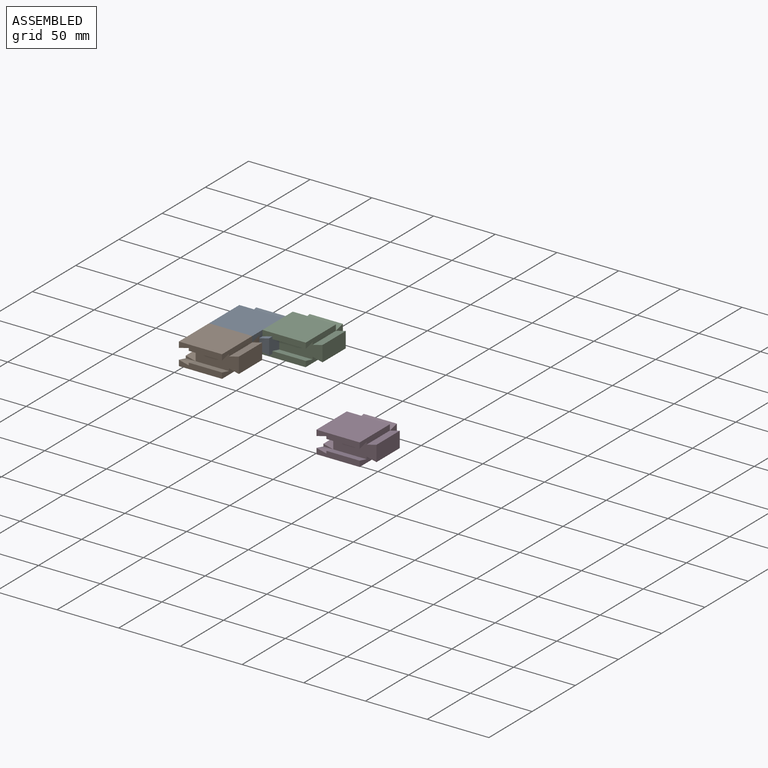
[diagram: assembled view]
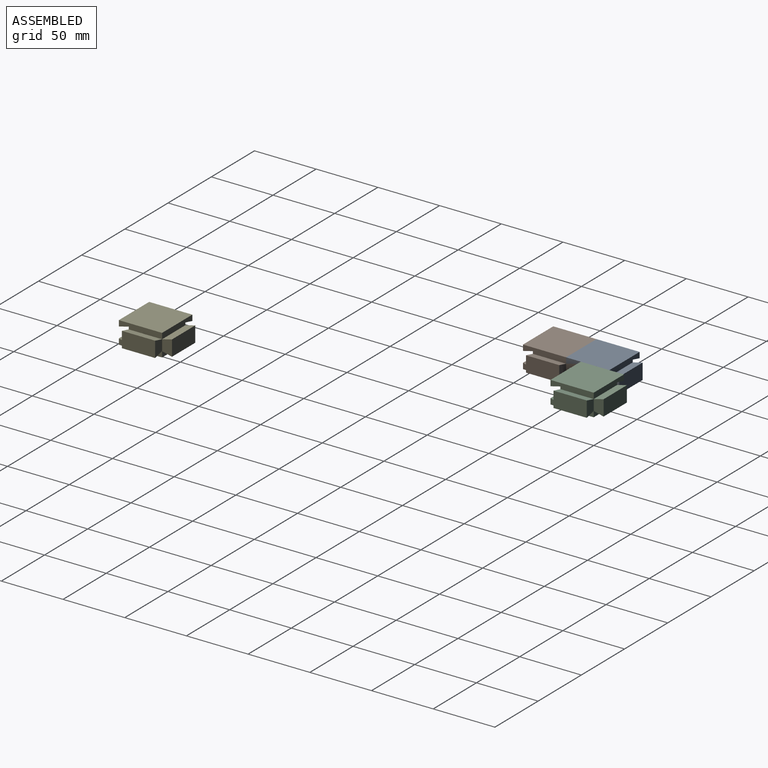
[diagram: assembled view, second angle]
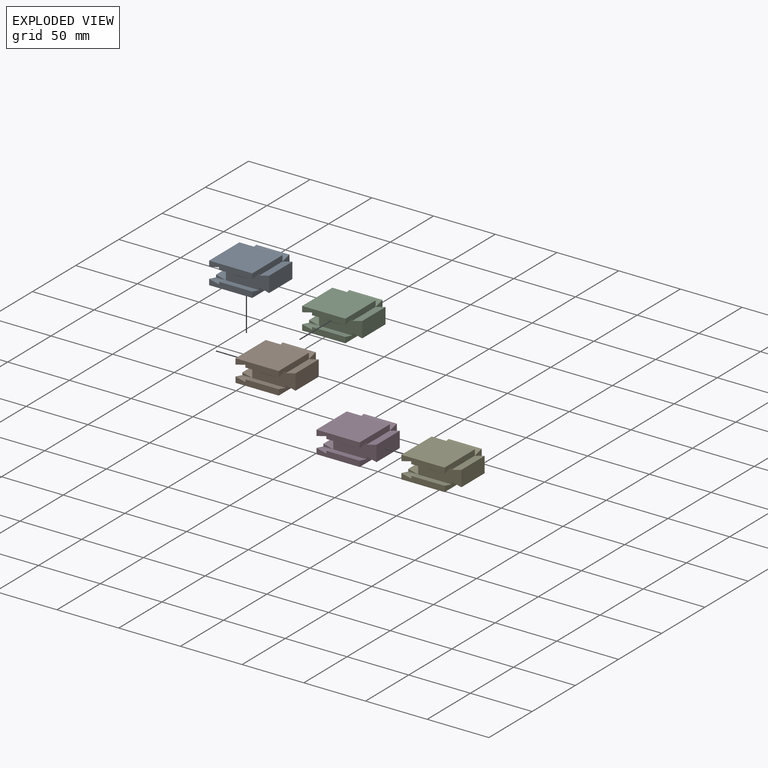
[diagram: exploded view]
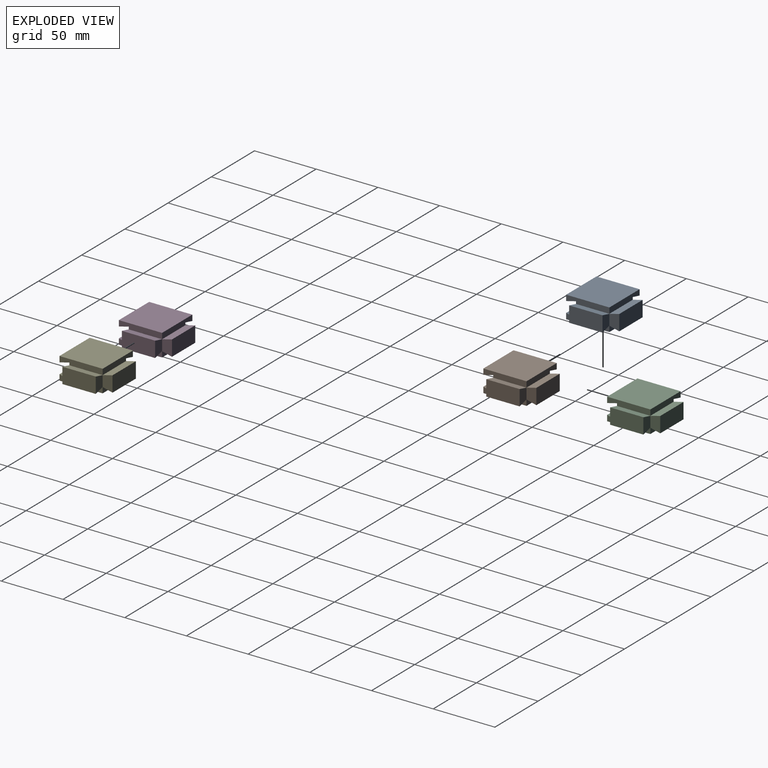
[diagram: exploded view, second angle]
ASSEMBLY  parts=3 mates=4
PART A: 32 faces, bbox 43x43x18 mm
  f0: plane 35x4.64mm, normal (0,1,0), area 154.6mm2, adj f2,f7,f14,f21,f22,f28
  f1: plane 12.7x8mm, normal (0,1,0), area 85.6mm2, adj f18,f19,f20,f29
  f2: plane 35x4.64mm, normal (-1,0,0), area 154.6mm2, adj f0,f8,f14,f16,f17,f21
  f3: plane 8x8mm, normal (0,0.24,-0.97), area 33mm2, adj f5,f9,f26
  f4: plane 27x8mm, normal (0,0.24,0.97), area 222.6mm2, adj f6,f7,f8,f25
  f5: plane 8x1.99mm, normal (0,-1,0), area 8mm2, adj f3,f9,f23
  f6: plane 35x12.7mm, normal (0,-1,0), area 428.5mm2, adj f4,f7,f11,f15,f18,f19,f20,f22
  f7: plane 35x4.64mm, normal (1,0,0), area 154.6mm2, adj f0,f4,f6,f8,f14,f20
  f8: plane 35x4.64mm, normal (0,-1,0), area 154.6mm2, adj f2,f4,f7,f14,f24,f25
  f9: plane 35x4.64mm, normal (-1,0,0), area 154.6mm2, adj f3,f5,f10,f12,f13,f23
  f10: plane 35x4.64mm, normal (0,-1,0), area 154.6mm2, adj f9,f11,f13,f15,f26,f27
  f11: plane 35x4.64mm, normal (1,0,0), area 154.6mm2, adj f6,f10,f12,f13,f15,f18
  f12: plane 35x4.64mm, normal (0,1,0), area 154.6mm2, adj f9,f11,f13,f22,f23,f31
  f13: plane 35x35mm, normal (0,0,1), area 1225mm2, adj f9,f10,f11,f12
  f14: plane 35x35mm, normal (0,0,-1), area 1225mm2, adj f0,f2,f7,f8
  f15: plane 27x8mm, normal (0,0.24,-0.97), area 222.6mm2, adj f6,f10,f11,f27
  f16: plane 8x8mm, normal (0,0.24,0.97), area 33mm2, adj f2,f17,f24
  f17: plane 8x1.99mm, normal (0,-1,0), area 8mm2, adj f2,f16,f21
  f18: plane 27x8mm, normal (-0.24,0,0.97), area 222.6mm2, adj f1,f6,f11,f19
  f19: plane 27x12.7mm, normal (1,0,0), area 342.9mm2, adj f1,f6,f18,f20
  f20: plane 27x8mm, normal (-0.24,0,-0.97), area 222.6mm2, adj f1,f6,f7,f19
  f21: plane 27x8mm, normal (0.24,0,0.97), area 222.6mm2, adj f0,f2,f17,f22
  f22: plane 35x12.7mm, normal (-1,0,0), area 428.5mm2, adj f0,f6,f12,f21,f23,f28,f30,f31
  f23: plane 27x8mm, normal (0.24,0,-0.97), area 222.6mm2, adj f5,f9,f12,f22
  f24: plane 8x8mm, normal (0.24,0,0.97), area 33mm2, adj f8,f16,f25
  f25: plane 8x1.99mm, normal (-1,0,0), area 8mm2, adj f4,f8,f24
  f26: plane 8x8mm, normal (0.24,0,-0.97), area 33mm2, adj f3,f10,f27
  f27: plane 8x1.99mm, normal (-1,0,0), area 8mm2, adj f10,f15,f26
  f28: plane 27x8mm, normal (0,-0.24,-0.97), area 222.6mm2, adj f0,f22,f29,f30
  f29: plane 12.7x8mm, normal (1,0,0), area 85.6mm2, adj f1,f28,f30,f31
  f30: plane 27x12.7mm, normal (0,1,0), area 342.9mm2, adj f22,f28,f29,f31
  f31: plane 27x8mm, normal (0,-0.24,0.97), area 222.6mm2, adj f12,f22,f29,f30
PART B: same geometry as A
PART C: same geometry as A
PLACE A t=(-228.69,202.33,-60.51)mm fixed
PLACE B t=(-228.69,167.33,-60.51)mm
PLACE C t=(-193.69,214.15,-60.51)mm
MATE planar B.f19 <-> A.f19  axis (1,0,0) through (-203.19,171.33,-51.51)mm
MATE slider B.f22 <-> A.f22  axis (-1,0,0) through (-238.19,192.83,-51.51)mm
MATE planar B.f19 <-> A.f19  axis (1,0,0) through (-203.19,171.33,-51.51)mm
MATE slider A.f6 <-> C.f6  axis (0,-1,0) through (-203.19,192.83,-51.51)mm
